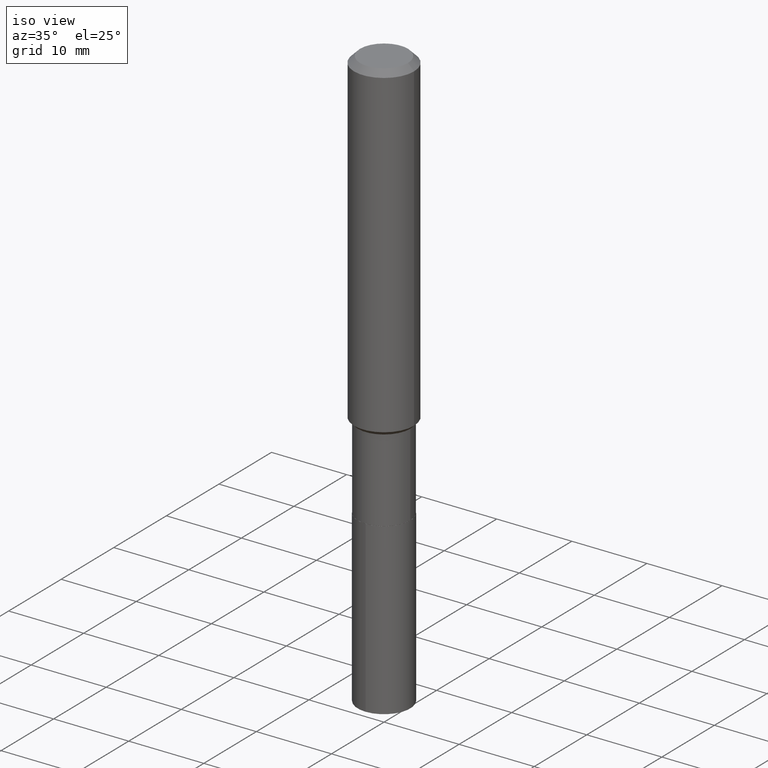
[diagram: clean part render]
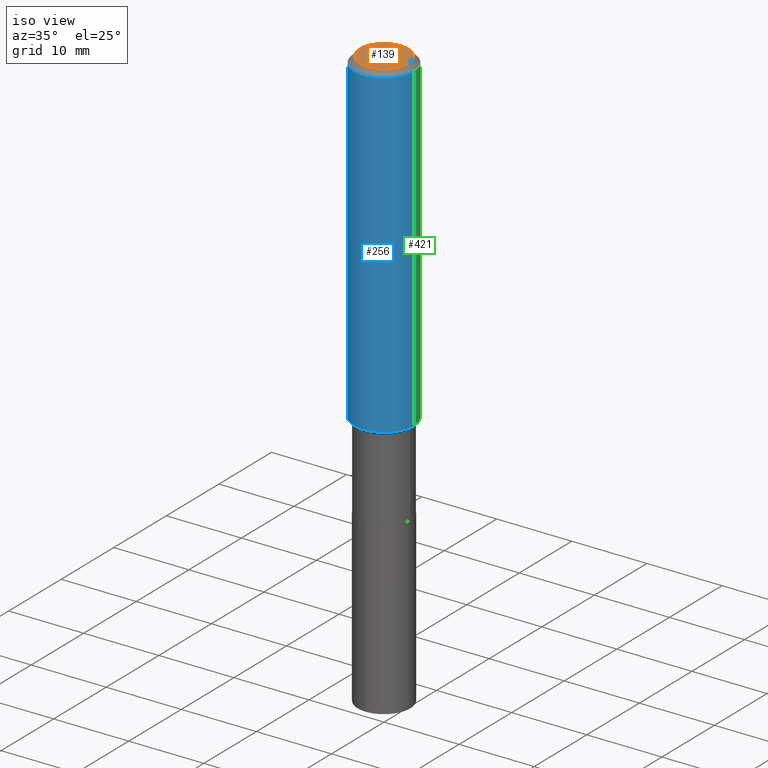
[diagram: same view with three faces highlighted in distinct colors, each labeled with its STEP entity id]
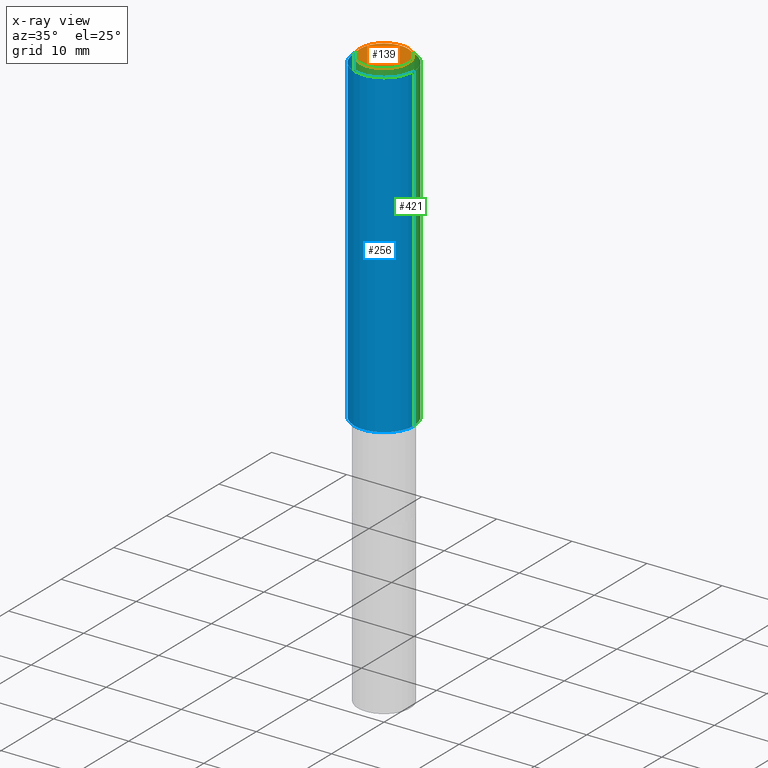
[diagram: x-ray of the same camera — body ghosted, the three highlighted faces saturated]
A machine part, iso view with three faces highlighted in distinct colors.
The next image is the same camera in x-ray (body ghosted, the three faces saturated) — at least one of them is partly hidden behind the body in this view.
Their STEP definitions:

[orange] entity #139 — the highlighted planar face has unit normal (0, -0, -1).
#42 = CARTESIAN_POINT ( 'NONE',  ( 0.1260000000000000009, -1.027466422270894443E-15, 3.860086710919128072E-18 ) ) ;
#53 = AXIS2_PLACEMENT_3D ( 'NONE', #376, #187, #343 ) ;
#67 = DIRECTION ( 'NONE',  ( 2.438088387897960049E-29, -3.491481338843145188E-15, -1.000000000000000000 ) ) ;
#100 = PLANE ( 'NONE',  #164 ) ;
#103 = FACE_OUTER_BOUND ( 'NONE', #140, .T. ) ;
#115 = EDGE_CURVE ( 'NONE', #457, #321, #117, .T. ) ;
#117 = CIRCLE ( 'NONE', #183, 0.1260000000000000009 ) ;
#134 = ORIENTED_EDGE ( 'NONE', *, *, #489, .T. ) ;
#136 = CARTESIAN_POINT ( 'NONE',  ( -9.439721640706201686E-47, 1.347742071746726764E-32, 3.860086710912459732E-18 ) ) ;
#139 = ADVANCED_FACE ( 'NONE', ( #103 ), #100, .F. ) ;
#140 = EDGE_LOOP ( 'NONE', ( #447, #134 ) ) ;
#144 = CARTESIAN_POINT ( 'NONE',  ( -4.719860820353100843E-47, 6.738710358733633822E-33, 1.930043355456229866E-18 ) ) ;
#164 = AXIS2_PLACEMENT_3D ( 'NONE', #144, #67, #375 ) ;
#183 = AXIS2_PLACEMENT_3D ( 'NONE', #136, #284, #427 ) ;
#187 = DIRECTION ( 'NONE',  ( -2.445468806185136597E-29, 3.491481338843145583E-15, 1.000000000000000000 ) ) ;
#262 = CARTESIAN_POINT ( 'NONE',  ( -0.1260000000000000009, 9.348441284752484904E-16, 3.860086710906114178E-18 ) ) ;
#284 = DIRECTION ( 'NONE',  ( -2.445468806185136597E-29, 3.491481338843145583E-15, 1.000000000000000000 ) ) ;
#321 = VERTEX_POINT ( 'NONE', #42 ) ;
#343 = DIRECTION ( 'NONE',  ( 1.000000000000000000, -6.982962677686265922E-15, 4.876281427513067258E-29 ) ) ;
#375 = DIRECTION ( 'NONE',  ( -1.000000000000000000, 6.982962677686265922E-15, -4.876176775795935793E-29 ) ) ;
#376 = CARTESIAN_POINT ( 'NONE',  ( -9.439721640706201686E-47, 1.347742071746726764E-32, 3.860086710912459732E-18 ) ) ;
#427 = DIRECTION ( 'NONE',  ( 1.000000000000000000, -6.982962677686265922E-15, 4.876281427513067258E-29 ) ) ;
#431 = CIRCLE ( 'NONE', #53, 0.1260000000000000009 ) ;
#447 = ORIENTED_EDGE ( 'NONE', *, *, #115, .T. ) ;
#457 = VERTEX_POINT ( 'NONE', #262 ) ;
#489 = EDGE_CURVE ( 'NONE', #321, #457, #431, .T. ) ;

[blue] entity #256 — the highlighted cylindrical surface (partial cylindrical patch) has radius 4.0005 mm, axis along (-0, 0, 1).
#10 = CARTESIAN_POINT ( 'NONE',  ( -0.1575000000000000844, 1.119104808822158392E-15, -7.747322767151481189E-30 ) ) ;
#17 = CIRCLE ( 'NONE', #281, 0.1575000000000000011 ) ;
#21 = DIRECTION ( 'NONE',  ( 1.000000000000000000, -6.982962677686267499E-15, 4.876176775795936353E-29 ) ) ;
#24 = CIRCLE ( 'NONE', #316, 0.1575000000000001954 ) ;
#38 = CYLINDRICAL_SURFACE ( 'NONE', #270, 0.1575000000000000844 ) ;
#41 = DIRECTION ( 'NONE',  ( -2.445468806185136877E-29, 3.491481338843145188E-15, 1.000000000000000000 ) ) ;
#57 = EDGE_CURVE ( 'NONE', #110, #370, #226, .T. ) ;
#68 = DIRECTION ( 'NONE',  ( -2.445468806185136597E-29, 3.491481338843145583E-15, 1.000000000000000000 ) ) ;
#76 = DIRECTION ( 'NONE',  ( -2.445468806185136597E-29, 3.491481338843145583E-15, 1.000000000000000000 ) ) ;
#80 = DIRECTION ( 'NONE',  ( -2.445468806185136597E-29, 3.491481338843145583E-15, 1.000000000000000000 ) ) ;
#110 = VERTEX_POINT ( 'NONE', #237 ) ;
#125 = FACE_OUTER_BOUND ( 'NONE', #394, .T. ) ;
#126 = CARTESIAN_POINT ( 'NONE',  ( 0.1575000000000000011, -1.209798283909146741E-15, -0.03150000000000019451 ) ) ;
#138 = VECTOR ( 'NONE', #211, 39.37007874015748143 ) ;
#149 = VERTEX_POINT ( 'NONE', #331 ) ;
#184 = ORIENTED_EDGE ( 'NONE', *, *, #312, .F. ) ;
#198 = CARTESIAN_POINT ( 'NONE',  ( 0.000000000000000000, 0.000000000000000000, 0.000000000000000000 ) ) ;
#211 = DIRECTION ( 'NONE',  ( -2.445468806185136877E-29, 3.491481338843145188E-15, 1.000000000000000000 ) ) ;
#221 = DIRECTION ( 'NONE',  ( 1.000000000000000000, -6.982962677686265922E-15, 0.000000000000000000 ) ) ;
#226 = LINE ( 'NONE', #386, #315 ) ;
#237 = CARTESIAN_POINT ( 'NONE',  ( 0.1575000000000001954, -7.072344599960672937E-15, -1.710600000000000120 ) ) ;
#239 = ORIENTED_EDGE ( 'NONE', *, *, #478, .T. ) ;
#256 = ADVANCED_FACE ( 'NONE', ( #125 ), #38, .T. ) ;
#270 = AXIS2_PLACEMENT_3D ( 'NONE', #198, #80, #21 ) ;
#281 = AXIS2_PLACEMENT_3D ( 'NONE', #419, #76, #373 ) ;
#283 = ORIENTED_EDGE ( 'NONE', *, *, #57, .T. ) ;
#312 = EDGE_CURVE ( 'NONE', #337, #370, #17, .T. ) ;
#315 = VECTOR ( 'NONE', #41, 39.37007874015748143 ) ;
#316 = AXIS2_PLACEMENT_3D ( 'NONE', #411, #68, #221 ) ;
#331 = CARTESIAN_POINT ( 'NONE',  ( -0.1575000000000001954, -4.853423169402925487E-15, -1.710600000000000120 ) ) ;
#337 = VERTEX_POINT ( 'NONE', #482 ) ;
#360 = EDGE_CURVE ( 'NONE', #149, #337, #451, .T. ) ;
#361 = ORIENTED_EDGE ( 'NONE', *, *, #360, .F. ) ;
#370 = VERTEX_POINT ( 'NONE', #126 ) ;
#373 = DIRECTION ( 'NONE',  ( 1.000000000000000000, -6.982962677686265922E-15, 0.000000000000000000 ) ) ;
#386 = CARTESIAN_POINT ( 'NONE',  ( 0.1575000000000000844, -1.099816621735587677E-15, 7.679978421878603638E-30 ) ) ;
#394 = EDGE_LOOP ( 'NONE', ( #361, #239, #283, #184 ) ) ;
#411 = CARTESIAN_POINT ( 'NONE',  ( 4.183218939860295010E-29, -5.972527978225084668E-15, -1.710600000000000120 ) ) ;
#419 = CARTESIAN_POINT ( 'NONE',  ( 7.703226739483228723E-31, -1.099816621735597661E-16, -0.03150000000000019451 ) ) ;
#451 = LINE ( 'NONE', #10, #138 ) ;
#478 = EDGE_CURVE ( 'NONE', #149, #110, #24, .T. ) ;
#482 = CARTESIAN_POINT ( 'NONE',  ( -0.1575000000000000011, -1.922150011377162882E-15, -0.03150000000000019451 ) ) ;

[green] entity #421 — the highlighted cylindrical surface (partial cylindrical patch) has radius 4.0005 mm, axis along (-0, 0, 1).
#10 = CARTESIAN_POINT ( 'NONE',  ( -0.1575000000000000844, 1.119104808822158392E-15, -7.747322767151481189E-30 ) ) ;
#15 = DIRECTION ( 'NONE',  ( 1.000000000000000000, -6.982962677686265922E-15, 0.000000000000000000 ) ) ;
#20 = EDGE_CURVE ( 'NONE', #370, #337, #92, .T. ) ;
#22 = FACE_OUTER_BOUND ( 'NONE', #118, .T. ) ;
#27 = ORIENTED_EDGE ( 'NONE', *, *, #57, .F. ) ;
#41 = DIRECTION ( 'NONE',  ( -2.445468806185136877E-29, 3.491481338843145188E-15, 1.000000000000000000 ) ) ;
#57 = EDGE_CURVE ( 'NONE', #110, #370, #226, .T. ) ;
#92 = CIRCLE ( 'NONE', #232, 0.1575000000000000011 ) ;
#109 = DIRECTION ( 'NONE',  ( 1.000000000000000000, -6.982962677686267499E-15, 4.876176775795936353E-29 ) ) ;
#110 = VERTEX_POINT ( 'NONE', #237 ) ;
#112 = EDGE_CURVE ( 'NONE', #110, #149, #146, .T. ) ;
#113 = DIRECTION ( 'NONE',  ( -2.445468806185136597E-29, 3.491481338843145583E-15, 1.000000000000000000 ) ) ;
#118 = EDGE_LOOP ( 'NONE', ( #473, #186, #154, #27 ) ) ;
#126 = CARTESIAN_POINT ( 'NONE',  ( 0.1575000000000000011, -1.209798283909146741E-15, -0.03150000000000019451 ) ) ;
#138 = VECTOR ( 'NONE', #211, 39.37007874015748143 ) ;
#146 = CIRCLE ( 'NONE', #351, 0.1575000000000001954 ) ;
#149 = VERTEX_POINT ( 'NONE', #331 ) ;
#154 = ORIENTED_EDGE ( 'NONE', *, *, #20, .F. ) ;
#181 = CYLINDRICAL_SURFACE ( 'NONE', #469, 0.1575000000000000844 ) ;
#186 = ORIENTED_EDGE ( 'NONE', *, *, #360, .T. ) ;
#211 = DIRECTION ( 'NONE',  ( -2.445468806185136877E-29, 3.491481338843145188E-15, 1.000000000000000000 ) ) ;
#226 = LINE ( 'NONE', #386, #315 ) ;
#232 = AXIS2_PLACEMENT_3D ( 'NONE', #365, #265, #471 ) ;
#237 = CARTESIAN_POINT ( 'NONE',  ( 0.1575000000000001954, -7.072344599960672937E-15, -1.710600000000000120 ) ) ;
#265 = DIRECTION ( 'NONE',  ( -2.445468806185136597E-29, 3.491481338843145583E-15, 1.000000000000000000 ) ) ;
#315 = VECTOR ( 'NONE', #41, 39.37007874015748143 ) ;
#331 = CARTESIAN_POINT ( 'NONE',  ( -0.1575000000000001954, -4.853423169402925487E-15, -1.710600000000000120 ) ) ;
#337 = VERTEX_POINT ( 'NONE', #482 ) ;
#351 = AXIS2_PLACEMENT_3D ( 'NONE', #395, #356, #15 ) ;
#356 = DIRECTION ( 'NONE',  ( -2.445468806185136597E-29, 3.491481338843145583E-15, 1.000000000000000000 ) ) ;
#360 = EDGE_CURVE ( 'NONE', #149, #337, #451, .T. ) ;
#365 = CARTESIAN_POINT ( 'NONE',  ( 7.703226739483228723E-31, -1.099816621735597661E-16, -0.03150000000000019451 ) ) ;
#370 = VERTEX_POINT ( 'NONE', #126 ) ;
#386 = CARTESIAN_POINT ( 'NONE',  ( 0.1575000000000000844, -1.099816621735587677E-15, 7.679978421878603638E-30 ) ) ;
#395 = CARTESIAN_POINT ( 'NONE',  ( 4.183218939860295010E-29, -5.972527978225084668E-15, -1.710600000000000120 ) ) ;
#421 = ADVANCED_FACE ( 'NONE', ( #22 ), #181, .T. ) ;
#445 = CARTESIAN_POINT ( 'NONE',  ( 0.000000000000000000, 0.000000000000000000, 0.000000000000000000 ) ) ;
#451 = LINE ( 'NONE', #10, #138 ) ;
#469 = AXIS2_PLACEMENT_3D ( 'NONE', #445, #113, #109 ) ;
#471 = DIRECTION ( 'NONE',  ( 1.000000000000000000, -6.982962677686265922E-15, 0.000000000000000000 ) ) ;
#473 = ORIENTED_EDGE ( 'NONE', *, *, #112, .T. ) ;
#482 = CARTESIAN_POINT ( 'NONE',  ( -0.1575000000000000011, -1.922150011377162882E-15, -0.03150000000000019451 ) ) ;